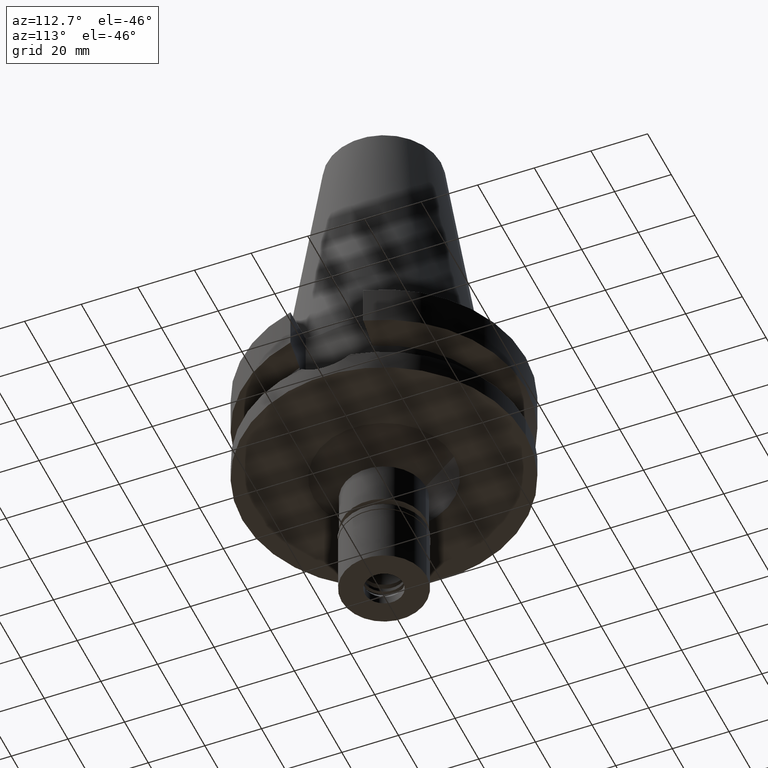
[diagram: clean part render]
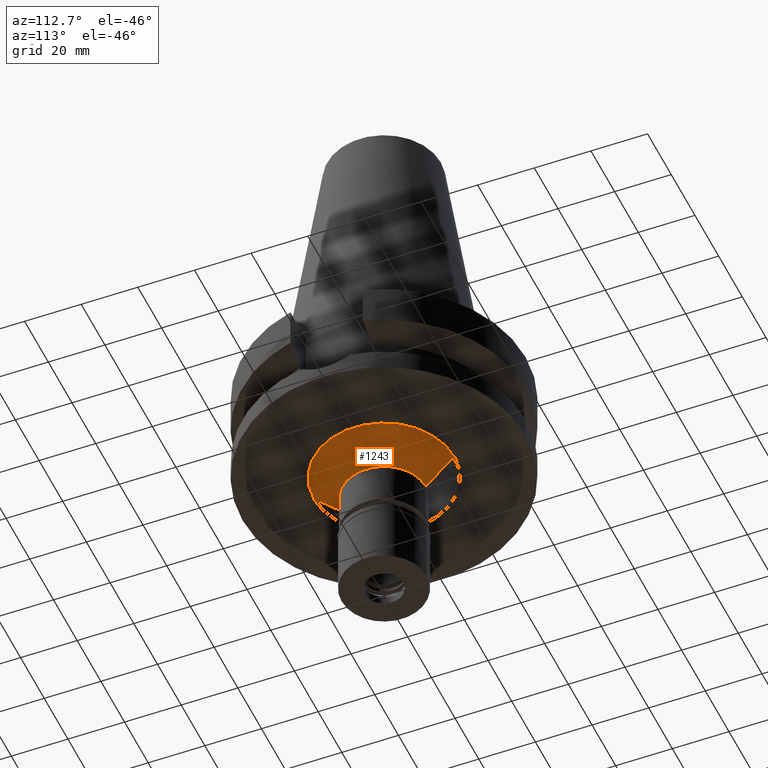
[diagram: same view with one face highlighted and labeled with its STEP entity id]
A machine part, auxiliary view. The second image highlights one B-rep face of the part: STEP entity #1243.
In plain terms, the highlighted conical surface has half-angle 45 deg.
Its self-contained STEP definition (entity closure, byte-faithful):
#100 = CARTESIAN_POINT ( 'NONE',  ( 0.0000000000000000000, 0.0000000000000000000, -48.00000000000000000 ) ) ;
#104 = EDGE_CURVE ( 'NONE', #1272, #2134, #2675, .T. ) ;
#185 = CIRCLE ( 'NONE', #2887, 24.75000000000000000 ) ;
#275 = DIRECTION ( 'NONE',  ( 0.0000000000000000000, 0.0000000000000000000, 1.000000000000000000 ) ) ;
#363 = DIRECTION ( 'NONE',  ( 0.0000000000000000000, 1.000000000000000000, 0.0000000000000000000 ) ) ;
#384 = EDGE_CURVE ( 'NONE', #1815, #2134, #638, .T. ) ;
#540 = DIRECTION ( 'NONE',  ( 0.0000000000000000000, 0.0000000000000000000, -1.000000000000000000 ) ) ;
#552 = CARTESIAN_POINT ( 'NONE',  ( 0.0000000000000000000, -24.75000000000000000, -38.00000000000000000 ) ) ;
#638 = CIRCLE ( 'NONE', #1446, 14.75000000000000000 ) ;
#999 = CARTESIAN_POINT ( 'NONE',  ( 0.0000000000000000000, -24.75000000000000000, -38.00000000000000000 ) ) ;
#1028 = ORIENTED_EDGE ( 'NONE', *, *, #2540, .F. ) ;
#1029 = CARTESIAN_POINT ( 'NONE',  ( 0.0000000000000000000, 24.75000000000000000, -38.00000000000000000 ) ) ;
#1075 = DIRECTION ( 'NONE',  ( 0.0000000000000000000, 0.0000000000000000000, -1.000000000000000000 ) ) ;
#1163 = VECTOR ( 'NONE', #2664, 1000.000000000000114 ) ;
#1243 = ADVANCED_FACE ( 'NONE', ( #1723 ), #2984, .T. ) ;
#1272 = VERTEX_POINT ( 'NONE', #999 ) ;
#1346 = ORIENTED_EDGE ( 'NONE', *, *, #2560, .T. ) ;
#1439 = DIRECTION ( 'NONE',  ( 0.0000000000000000000, 1.000000000000000000, 0.0000000000000000000 ) ) ;
#1446 = AXIS2_PLACEMENT_3D ( 'NONE', #100, #1075, #363 ) ;
#1656 = LINE ( 'NONE', #2633, #1163 ) ;
#1680 = ORIENTED_EDGE ( 'NONE', *, *, #104, .T. ) ;
#1723 = FACE_OUTER_BOUND ( 'NONE', #2513, .T. ) ;
#1815 = VERTEX_POINT ( 'NONE', #2147 ) ;
#1856 = VECTOR ( 'NONE', #2001, 1000.000000000000114 ) ;
#2001 = DIRECTION ( 'NONE',  ( 0.0000000000000000000, 0.7071067811865474617, -0.7071067811865474617 ) ) ;
#2134 = VERTEX_POINT ( 'NONE', #2632 ) ;
#2147 = CARTESIAN_POINT ( 'NONE',  ( 0.0000000000000000000, 14.75000000000000000, -48.00000000000000000 ) ) ;
#2177 = AXIS2_PLACEMENT_3D ( 'NONE', #2645, #275, #1439 ) ;
#2453 = DIRECTION ( 'NONE',  ( 0.0000000000000000000, 1.000000000000000000, 0.0000000000000000000 ) ) ;
#2513 = EDGE_LOOP ( 'NONE', ( #1346, #1680, #2907, #1028 ) ) ;
#2540 = EDGE_CURVE ( 'NONE', #3029, #1815, #1656, .T. ) ;
#2560 = EDGE_CURVE ( 'NONE', #3029, #1272, #185, .T. ) ;
#2632 = CARTESIAN_POINT ( 'NONE',  ( 0.0000000000000000000, -14.75000000000000000, -48.00000000000000000 ) ) ;
#2633 = CARTESIAN_POINT ( 'NONE',  ( 0.0000000000000000000, 24.75000000000000000, -38.00000000000000000 ) ) ;
#2645 = CARTESIAN_POINT ( 'NONE',  ( 0.0000000000000000000, 0.0000000000000000000, -43.00000000000000000 ) ) ;
#2664 = DIRECTION ( 'NONE',  ( 0.0000000000000000000, -0.7071067811865474617, -0.7071067811865474617 ) ) ;
#2675 = LINE ( 'NONE', #552, #1856 ) ;
#2887 = AXIS2_PLACEMENT_3D ( 'NONE', #3148, #540, #2453 ) ;
#2907 = ORIENTED_EDGE ( 'NONE', *, *, #384, .F. ) ;
#2984 = CONICAL_SURFACE ( 'NONE', #2177, 19.75000000000000000, 0.7853981633972997312 ) ;
#3029 = VERTEX_POINT ( 'NONE', #1029 ) ;
#3148 = CARTESIAN_POINT ( 'NONE',  ( 0.0000000000000000000, 0.0000000000000000000, -38.00000000000000000 ) ) ;